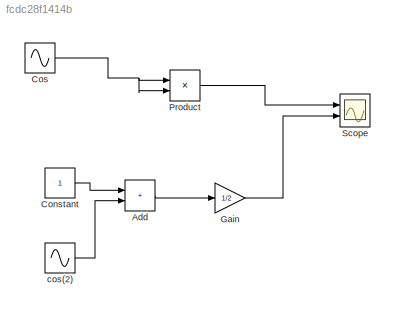
MODEL slx_fcdc28f1414b
KIND model
CONFIG AbsTol = auto
CONFIG EnableMultiTasking = off
CONFIG FixedStep = auto
CONFIG MaxStep = auto
CONFIG MinStep = auto
CONFIG RelTol = 1e-3
CONFIG SampleTimeConstraint = Unconstrained
CONFIG SolverName = VariableStepAuto
CONFIG StartTime = 0.0
CONFIG StopTime = 1
BLOCK [Sum] Add
  IconShape = rectangular
  Ports = [2, 1]
BLOCK [Constant] Constant
BLOCK [Sin] Cos
  Frequency = 2*pi*1
  Phase = pi/2
  Ports = [0, 1]
  SampleTime = 0
BLOCK [Gain] Gain
  Gain = 1/2
BLOCK [Product] Product
  Ports = [2, 1]
BLOCK [Scope] Scope
  Floating = off
  NumInputPorts = 2
  Ports = [2]
  ScopeSpecificationString = Simulink.scopes.TimeScopeBlockCfg('CurrentConfiguration', extmgr.ConfigurationSet(extmgr.Configuration('Core','General UI',true),extmgr.Configuration('Core','Source UI',true),extmgr.Configuration('Sources','WiredSimulink',true),extmgr.Configuration('Visuals','Time Domain',true,'SerializedDisplays',{struct('MinYLimReal','-0.12056','MaxYLimReal','1.12451','YLabelReal','','MinYLimMag','0.00000','MaxY...<+2067ch>
BLOCK [Sin] cos(2)
  Frequency = 2*pi*1*2
  Phase = pi/2
  Ports = [0, 1]
  SampleTime = 0
LINE Add:1 -> Gain:1
LINE Constant:1 -> Add:1
NET Cos:1 -> Product:1, Product:2
LINE Gain:1 -> Scope:2
LINE Product:1 -> Scope:1
LINE cos(2):1 -> Add:2
note: NET lines group one-source signal fan-out (src -> all destinations, sorted); 1:1 wires keep LINE
